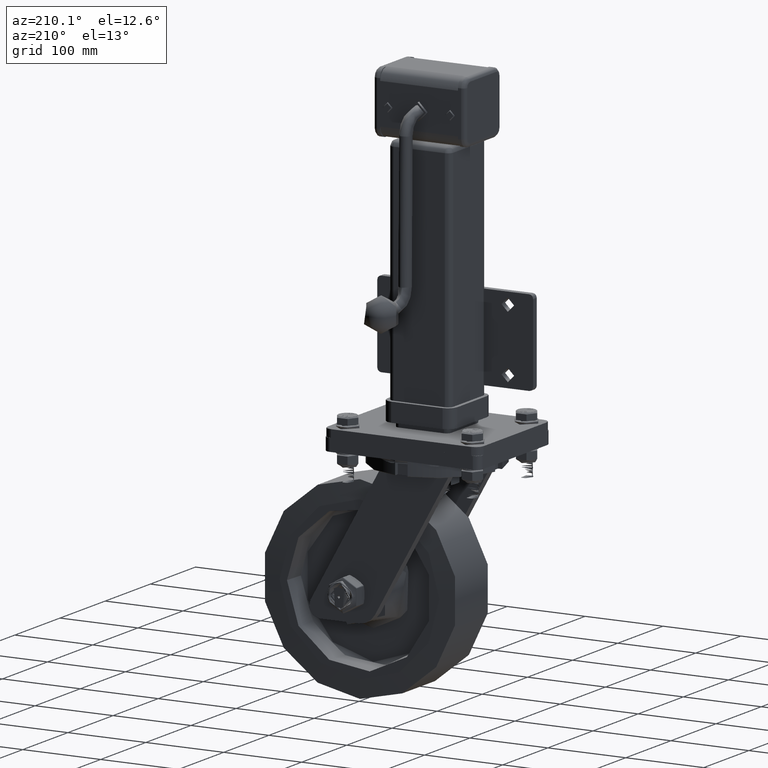
[diagram: clean part render]
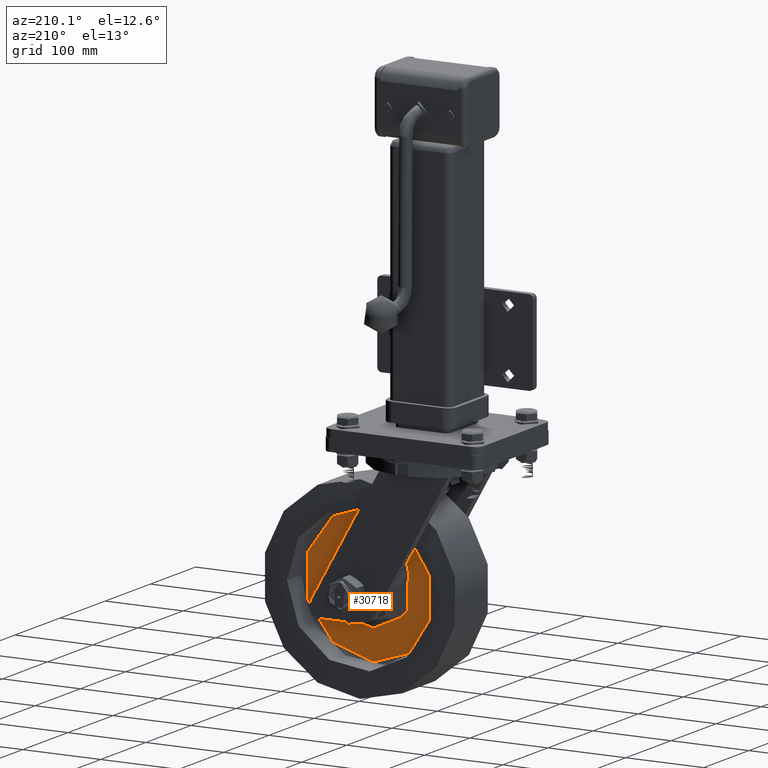
[diagram: same view with one face highlighted and labeled with its STEP entity id]
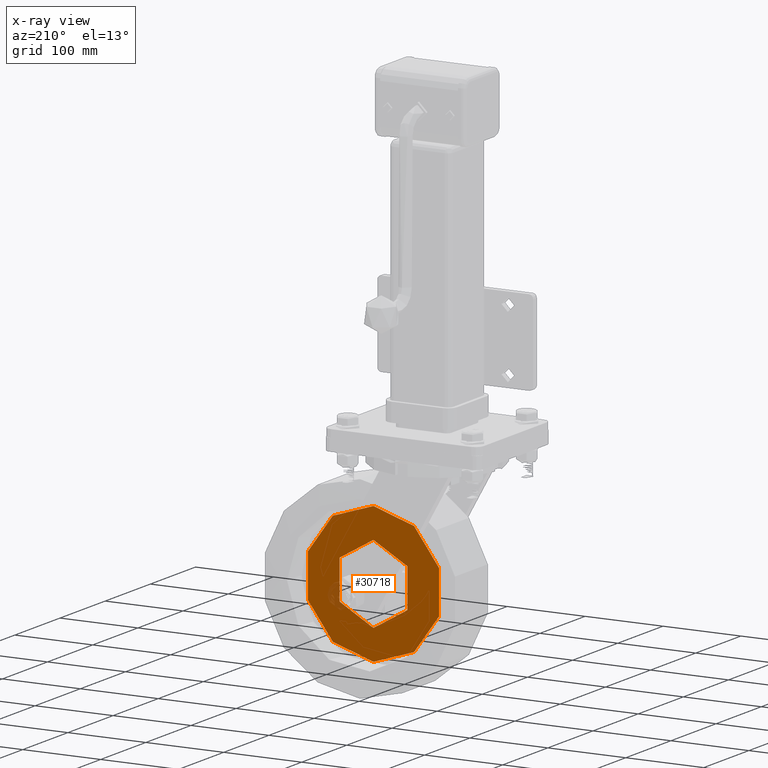
[diagram: x-ray of the same camera — body ghosted, the highlighted face saturated]
A machine part, auxiliary view. The second image highlights one B-rep face of the part: STEP entity #30718.
The next image is the same camera in x-ray: the body ghosted, the highlighted face saturated — about 2% of this face is hidden behind the body in this view.
In plain terms, the highlighted planar face has unit normal (-0, 1, 0).
Its self-contained STEP definition (entity closure, byte-faithful):
#902=FACE_BOUND('',#5908,.T.);
#1185=PLANE('',#33505);
#2411=CIRCLE('',#33475,50.1341078708026);
#2412=CIRCLE('',#33477,88.64165137687);
#3967=FACE_OUTER_BOUND('',#5907,.T.);
#5907=EDGE_LOOP('',(#22020));
#5908=EDGE_LOOP('',(#22021));
#13095=VERTEX_POINT('',#60226);
#13096=VERTEX_POINT('',#60230);
#16392=EDGE_CURVE('',#13095,#13095,#2411,.T.);
#16393=EDGE_CURVE('',#13096,#13096,#2412,.T.);
#22020=ORIENTED_EDGE('',*,*,#16393,.T.);
#22021=ORIENTED_EDGE('',*,*,#16392,.F.);
#30718=ADVANCED_FACE('',(#3967,#902),#1185,.T.);
#33475=AXIS2_PLACEMENT_3D('',#60228,#37739,#37740);
#33477=AXIS2_PLACEMENT_3D('',#60231,#37743,#37744);
#33505=AXIS2_PLACEMENT_3D('',#60343,#37813,#37814);
#37739=DIRECTION('center_axis',(-3.49148336110938E-15,1.,0.));
#37740=DIRECTION('ref_axis',(-1.,-3.49148336110938E-15,0.));
#37743=DIRECTION('center_axis',(-3.49148336110938E-15,1.,0.));
#37744=DIRECTION('ref_axis',(-1.,-3.49148336110938E-15,0.));
#37813=DIRECTION('center_axis',(-3.4013855092065E-15,1.,0.));
#37814=DIRECTION('ref_axis',(-1.,-3.4013855092065E-15,0.));
#60226=CARTESIAN_POINT('',(-2.34938782779096E-14,6.50000000000002,50.1341078708026));
#60228=CARTESIAN_POINT('Origin',(-2.96335357511183E-14,6.50000000000002,
0.));
#60230=CARTESIAN_POINT('',(-1.87780642881363E-14,6.50000000000002,88.64165137687));
#60231=CARTESIAN_POINT('Origin',(-2.96335357511183E-14,6.50000000000002,
0.));
#60343=CARTESIAN_POINT('Origin',(-69.3878796238363,6.49999999999978,0.));